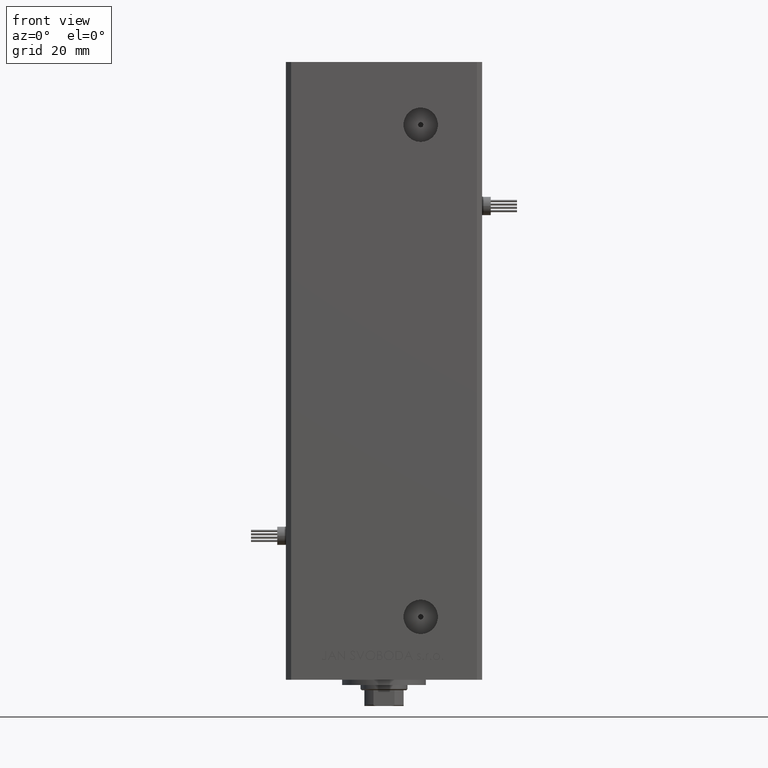
[diagram: clean part render]
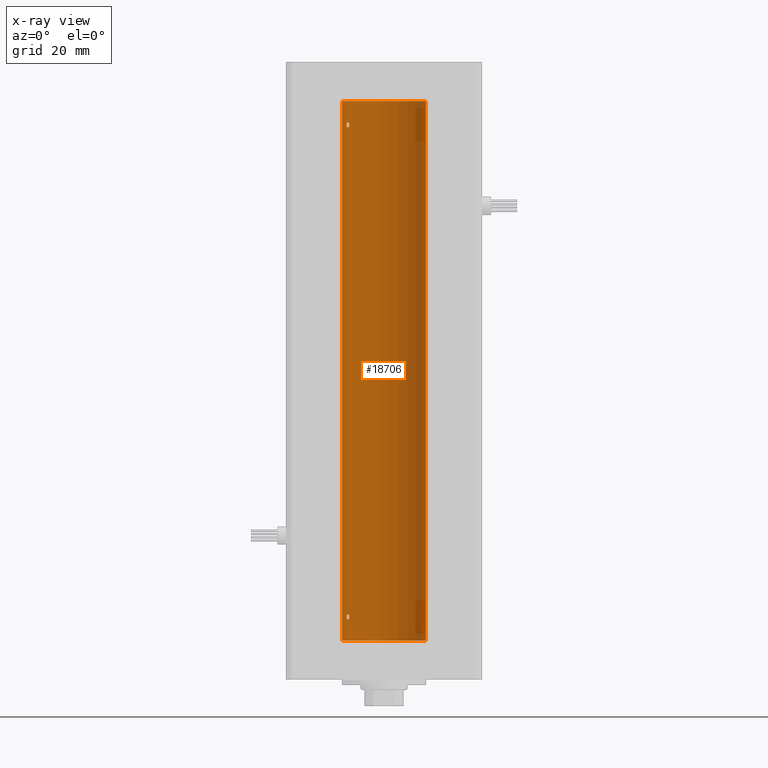
[diagram: x-ray — body ghosted, one internal face saturated and labeled with its STEP entity id]
A machine part, front view, then the same camera in x-ray: the body is ghosted and one INTERNAL B-rep face — a face not visible from any outside direction — is saturated and labeled: STEP entity #18706.
In plain terms, the highlighted cylindrical surface (partial cylindrical patch) has radius 16 mm, axis along (-0, -0, -1).
Its self-contained STEP definition (entity closure, byte-faithful):
#503 = CARTESIAN_POINT ( 'NONE',  ( -13.24976519864029179, 8.969293778684573226, 197.2815352263351372 ) ) ;
#889 = CARTESIAN_POINT ( 'NONE',  ( -13.22875655532296335, 8.999999999999978684, 9.140644760917750133 ) ) ;
#1066 = CARTESIAN_POINT ( 'NONE',  ( -16.00000000000000000, 0.000000000000000000, 206.0000000000000000 ) ) ;
#1126 = CARTESIAN_POINT ( 'NONE',  ( -13.23400746336172418, 8.992294519018086518, 196.8578145590230122 ) ) ;
#1419 = CARTESIAN_POINT ( 'NONE',  ( -14.11618354197462644, 7.533333301880464461, 9.893207651933423108 ) ) ;
#1684 = AXIS2_PLACEMENT_3D ( 'NONE', #25188, #16391, #49684 ) ;
#2106 = CARTESIAN_POINT ( 'NONE',  ( -13.37674940693423054, 8.779234808442856419, 8.360244157126787812 ) ) ;
#2907 = CARTESIAN_POINT ( 'NONE',  ( -13.22875655532296335, 8.999999999999982236, 9.000000000000007105 ) ) ;
#3736 = ORIENTED_EDGE ( 'NONE', *, *, #31727, .F. ) ;
#4255 = CARTESIAN_POINT ( 'NONE',  ( -14.38749456993815912, 6.999999999999998224, 196.9999999999999716 ) ) ;
#5139 = AXIS2_PLACEMENT_3D ( 'NONE', #35314, #51555, #27854 ) ;
#6712 = EDGE_CURVE ( 'NONE', #44365, #34410, #30851, .T. ) ;
#7169 = CARTESIAN_POINT ( 'NONE',  ( -14.27547848986623258, 7.226527013162171720, 8.352555730181538962 ) ) ;
#7376 = DIRECTION ( 'NONE',  ( -1.000000000000000000, 0.000000000000000000, 0.000000000000000000 ) ) ;
#7983 = CARTESIAN_POINT ( 'NONE',  ( -13.55800260393082901, 8.498809056167511145, 197.9036434462101965 ) ) ;
#8087 = CARTESIAN_POINT ( 'NONE',  ( -13.32426099938365383, 8.858246960865843178, 196.4688748775330112 ) ) ;
#8574 = CIRCLE ( 'NONE', #5139, 16.00000000000000000 ) ;
#8749 = CARTESIAN_POINT ( 'NONE',  ( -14.31650799088418324, 7.144337649771909327, 197.5355226273736378 ) ) ;
#9687 = CARTESIAN_POINT ( 'NONE',  ( -14.37227256866306746, 7.031482256185695334, 9.284457240976488279 ) ) ;
#10759 = CARTESIAN_POINT ( 'NONE',  ( -14.17528142432533755, 7.421143801852456257, 196.1739430735386520 ) ) ;
#10779 = VERTEX_POINT ( 'NONE', #44728 ) ;
#11104 = CARTESIAN_POINT ( 'NONE',  ( 0.000000000000000000, 0.000000000000000000, 206.0000000000000000 ) ) ;
#14635 = CARTESIAN_POINT ( 'NONE',  ( -13.32426099938365915, 8.858246960865836073, 8.468874877532975631 ) ) ;
#14876 = ORIENTED_EDGE ( 'NONE', *, *, #41777, .F. ) ;
#15217 = EDGE_CURVE ( 'NONE', #49601, #16703, #35661, .T. ) ;
#15846 = ORIENTED_EDGE ( 'NONE', *, *, #34668, .F. ) ;
#15896 = FACE_BOUND ( 'NONE', #31582, .T. ) ;
#16076 = CARTESIAN_POINT ( 'NONE',  ( -14.31660136508398828, 7.144151923086062617, 196.4646217954444012 ) ) ;
#16391 = DIRECTION ( 'NONE',  ( -0.000000000000000000, 0.000000000000000000, 1.000000000000000000 ) ) ;
#16597 = CARTESIAN_POINT ( 'NONE',  ( -13.77582987033441064, 8.139210687602716376, 196.0021105458418447 ) ) ;
#16703 = VERTEX_POINT ( 'NONE', #4255 ) ;
#16743 = CARTESIAN_POINT ( 'NONE',  ( -13.70792461986390798, 8.256614593260307444, 197.9966215356422765 ) ) ;
#17406 = CARTESIAN_POINT ( 'NONE',  ( -13.32457971225033866, 8.857769707964637362, 9.531999662746560631 ) ) ;
#17671 = CARTESIAN_POINT ( 'NONE',  ( -14.38749456993816978, 6.999999999999985789, 9.142625441524216967 ) ) ;
#17903 = EDGE_CURVE ( 'NONE', #23006, #10779, #43204, .T. ) ;
#18365 = CARTESIAN_POINT ( 'NONE',  ( -13.26838749541401263, 8.941532915076029653, 8.656217793921380022 ) ) ;
#18695 = CIRCLE ( 'NONE', #1684, 16.00000000000000000 ) ;
#18706 = ADVANCED_FACE ( 'NONE', ( #47614, #51883, #15896 ), #48409, .F. ) ;
#19663 = VERTEX_POINT ( 'NONE', #39102 ) ;
#20073 = CARTESIAN_POINT ( 'NONE',  ( -14.38749456993815912, 6.999999999999998224, 196.9999999999999716 ) ) ;
#20344 = CARTESIAN_POINT ( 'NONE',  ( -13.98699950016872506, 7.770591669637118670, 196.0184768166484730 ) ) ;
#20965 = AXIS2_PLACEMENT_3D ( 'NONE', #11104, #52422, #7376 ) ;
#21129 = CARTESIAN_POINT ( 'NONE',  ( -13.26838749541400730, 8.941532915076043864, 196.6562177939213427 ) ) ;
#21694 = CARTESIAN_POINT ( 'NONE',  ( -13.24976519864029889, 8.969293778684560792, 9.281535226335167366 ) ) ;
#21957 = CARTESIAN_POINT ( 'NONE',  ( -13.91892506969883669, 7.891973478508838902, 10.00155212263245375 ) ) ;
#22387 = CARTESIAN_POINT ( 'NONE',  ( -14.31660136508400072, 7.144151923086045741, 8.464621795444484675 ) ) ;
#22909 = CARTESIAN_POINT ( 'NONE',  ( -14.11621438951178575, 7.533308783216997817, 8.106571071839523412 ) ) ;
#23006 = VERTEX_POINT ( 'NONE', #1066 ) ;
#23183 = CARTESIAN_POINT ( 'NONE',  ( -13.70481462797718386, 8.258098555717490186, 8.025997477291141990 ) ) ;
#23199 = LINE ( 'NONE', #31986, #35754 ) ;
#23452 = CARTESIAN_POINT ( 'NONE',  ( -14.17528142432534288, 7.421143801852442934, 8.173943073538671555 ) ) ;
#23888 = ORIENTED_EDGE ( 'NONE', *, *, #15217, .F. ) ;
#24520 = CARTESIAN_POINT ( 'NONE',  ( -13.98878315975728981, 7.767347947480344850, 197.9805461432612503 ) ) ;
#25139 = CARTESIAN_POINT ( 'NONE',  ( -13.56386909142669772, 8.487613976483638467, 196.1182242979961075 ) ) ;
#25168 = CARTESIAN_POINT ( 'NONE',  ( -13.22875655532296335, 8.999999999999982236, 9.000000000000007105 ) ) ;
#25188 = CARTESIAN_POINT ( 'NONE',  ( 0.000000000000000000, 0.000000000000000000, 206.0000000000000000 ) ) ;
#26377 = CARTESIAN_POINT ( 'NONE',  ( -13.91838063522421542, 7.892966471903923420, 7.998148313308686141 ) ) ;
#26644 = CARTESIAN_POINT ( 'NONE',  ( -13.49759407097375608, 8.592283911330213186, 8.184099152127679133 ) ) ;
#26911 = CARTESIAN_POINT ( 'NONE',  ( -13.22875655532296513, 8.999999999999982236, 8.929565622361650412 ) ) ;
#27038 = CARTESIAN_POINT ( 'NONE',  ( -14.11621438951178398, 7.533308783217012028, 196.1065710718395110 ) ) ;
#27854 = DIRECTION ( 'NONE',  ( 1.000000000000000000, 0.000000000000000000, 0.000000000000000000 ) ) ;
#27943 = CARTESIAN_POINT ( 'NONE',  ( 16.00000000000000000, 1.959434878635765131E-15, 0.000000000000000000 ) ) ;
#28263 = CARTESIAN_POINT ( 'NONE',  ( -13.22875655532296157, 8.999999999999998224, 197.1406447609177235 ) ) ;
#28850 = B_SPLINE_CURVE_WITH_KNOTS ( 'NONE', 3,
 ( #20073, #36354, #52608, #16076, #47268, #10759, #27038, #20344, #44849, #16597, #49115, #25139, #32359, #45368, #8087, #21129, #32622, #1126, #37377, #48596 ),
 .UNSPECIFIED., .F., .F.,
 ( 4, 2, 2, 2, 2, 2, 2, 2, 2, 4 ),
 ( 0.000000000000000000, 0.0004222090241339814844, 0.0008444180482679629687, 0.001266627072401944453, 0.001688836096535925937, 0.002111045120669907422, 0.002533254144803888906, 0.002955463168937870391, 0.003166567681004825354, 0.003377672193071779884 ),
 .UNSPECIFIED. ) ;
#29026 = CARTESIAN_POINT ( 'NONE',  ( -14.11618354197461400, 7.533333301880476895, 197.8932076519334373 ) ) ;
#29165 = CARTESIAN_POINT ( 'NONE',  ( -13.98878315975730224, 7.767347947480332415, 9.980546143261287639 ) ) ;
#30622 = EDGE_CURVE ( 'NONE', #19663, #23006, #18695, .T. ) ;
#30635 = CARTESIAN_POINT ( 'NONE',  ( -14.37250282441144655, 7.031013007322923336, 8.716856996037272154 ) ) ;
#30851 = B_SPLINE_CURVE_WITH_KNOTS ( 'NONE', 3,
 ( #31701, #38620, #30635, #22387, #7169, #23452, #22909, #47946, #26377, #42611, #23183, #50873, #26644, #2106, #14635, #18365, #47671, #39422, #26911, #2907 ),
 .UNSPECIFIED., .F., .F.,
 ( 4, 2, 2, 2, 2, 2, 2, 2, 2, 4 ),
 ( 0.000000000000000000, 0.0004222090241339719434, 0.0008444180482679438868, 0.001266627072401915830, 0.001688836096535887774, 0.002111045120669859717, 0.002533254144803831660, 0.002955463168937803604, 0.003166567681004789359, 0.003377672193071775547 ),
 .UNSPECIFIED. ) ;
#31009 = ORIENTED_EDGE ( 'NONE', *, *, #17903, .T. ) ;
#31582 = EDGE_LOOP ( 'NONE', ( #3736, #23888 ) ) ;
#31701 = CARTESIAN_POINT ( 'NONE',  ( -14.38749456993816800, 6.999999999999984013, 9.000000000000007105 ) ) ;
#31727 = EDGE_CURVE ( 'NONE', #16703, #49601, #28850, .T. ) ;
#31986 = CARTESIAN_POINT ( 'NONE',  ( 16.00000000000000000, 1.959434878635765131E-15, 206.0000000000000000 ) ) ;
#31987 = CARTESIAN_POINT ( 'NONE',  ( -13.32457971225032267, 8.857769707964649797, 197.5319996627465571 ) ) ;
#32359 = CARTESIAN_POINT ( 'NONE',  ( -13.49759407097375075, 8.592283911330225621, 196.1840991521276578 ) ) ;
#32622 = CARTESIAN_POINT ( 'NONE',  ( -13.25390108270225298, 8.962947079338393408, 196.7214357623584817 ) ) ;
#32661 = EDGE_LOOP ( 'NONE', ( #15846, #51189, #31009, #36077 ) ) ;
#34218 = CARTESIAN_POINT ( 'NONE',  ( -14.38749456993816800, 6.999999999999984013, 9.000000000000007105 ) ) ;
#34410 = VERTEX_POINT ( 'NONE', #35312 ) ;
#34668 = EDGE_CURVE ( 'NONE', #19663, #38535, #23199, .T. ) ;
#35312 = CARTESIAN_POINT ( 'NONE',  ( -13.22875655532296335, 8.999999999999982236, 9.000000000000007105 ) ) ;
#35314 = CARTESIAN_POINT ( 'NONE',  ( 0.000000000000000000, 0.000000000000000000, 0.000000000000000000 ) ) ;
#35661 = B_SPLINE_CURVE_WITH_KNOTS ( 'NONE', 3,
 ( #48484, #28263, #503, #31987, #44742, #7983, #16743, #49256, #24520, #29026, #45258, #40756, #8749, #41269, #40502, #36503 ),
 .UNSPECIFIED., .F., .F.,
 ( 4, 2, 2, 2, 2, 2, 2, 4 ),
 ( 0.003377672193071779884, 0.003799209865779893530, 0.004220747538488007176, 0.005063822883904185029, 0.005485360556612275257, 0.005906898229320365484, 0.006328435902028455712, 0.006749973574736545072 ),
 .UNSPECIFIED. ) ;
#35754 = VECTOR ( 'NONE', #39439, 1000.000000000000000 ) ;
#36077 = ORIENTED_EDGE ( 'NONE', *, *, #50138, .F. ) ;
#36354 = CARTESIAN_POINT ( 'NONE',  ( -14.38749456993815556, 6.999999999999997335, 196.8571474096353313 ) ) ;
#36503 = CARTESIAN_POINT ( 'NONE',  ( -14.38749456993815912, 6.999999999999998224, 196.9999999999999716 ) ) ;
#37377 = CARTESIAN_POINT ( 'NONE',  ( -13.22875655532295802, 8.999999999999998224, 196.9295656223616220 ) ) ;
#37931 = CARTESIAN_POINT ( 'NONE',  ( -13.70792461986391864, 8.256614593260295010, 9.996621535642280065 ) ) ;
#38191 = CARTESIAN_POINT ( 'NONE',  ( -14.27521483392929902, 7.227035590538620546, 9.647859870688199280 ) ) ;
#38535 = VERTEX_POINT ( 'NONE', #27943 ) ;
#38620 = CARTESIAN_POINT ( 'NONE',  ( -14.38749456993816445, 6.999999999999982236, 8.857147409635420132 ) ) ;
#38798 = VECTOR ( 'NONE', #38953, 1000.000000000000000 ) ;
#38953 = DIRECTION ( 'NONE',  ( -0.000000000000000000, -0.000000000000000000, -1.000000000000000000 ) ) ;
#39102 = CARTESIAN_POINT ( 'NONE',  ( 16.00000000000000000, 1.959434878635765131E-15, 206.0000000000000000 ) ) ;
#39422 = CARTESIAN_POINT ( 'NONE',  ( -13.23400746336173484, 8.992294519018072307, 8.857814559023026391 ) ) ;
#39439 = DIRECTION ( 'NONE',  ( -0.000000000000000000, -0.000000000000000000, -1.000000000000000000 ) ) ;
#40502 = CARTESIAN_POINT ( 'NONE',  ( -14.38749456993816089, 6.999999999999999112, 197.1426254415242454 ) ) ;
#40756 = CARTESIAN_POINT ( 'NONE',  ( -14.27521483392929369, 7.227035590538639198, 197.6478598706882508 ) ) ;
#41269 = CARTESIAN_POINT ( 'NONE',  ( -14.37227256866306213, 7.031482256185710433, 197.2844572409764510 ) ) ;
#41406 = CARTESIAN_POINT ( 'NONE',  ( -13.37741691572086467, 8.778212469422998154, 9.640882860227108608 ) ) ;
#41659 = CARTESIAN_POINT ( 'NONE',  ( -13.55800260393082901, 8.498809056167502263, 9.903643446210180556 ) ) ;
#41777 = EDGE_CURVE ( 'NONE', #34410, #44365, #47242, .T. ) ;
#41926 = CARTESIAN_POINT ( 'NONE',  ( -14.17576283486775779, 7.420212263225971050, 9.825253034304363808 ) ) ;
#42611 = CARTESIAN_POINT ( 'NONE',  ( -13.77582987033441952, 8.139210687602698613, 8.002110545841825129 ) ) ;
#43204 = LINE ( 'NONE', #50943, #38798 ) ;
#44279 = CARTESIAN_POINT ( 'NONE',  ( -13.22875655532295802, 8.999999999999996447, 196.9999999999999716 ) ) ;
#44365 = VERTEX_POINT ( 'NONE', #51196 ) ;
#44728 = CARTESIAN_POINT ( 'NONE',  ( -16.00000000000000000, 0.000000000000000000, 0.000000000000000000 ) ) ;
#44742 = CARTESIAN_POINT ( 'NONE',  ( -13.37741691572086289, 8.778212469423007036, 197.6408828602271228 ) ) ;
#44849 = CARTESIAN_POINT ( 'NONE',  ( -13.91838063522421187, 7.892966471903947401, 195.9981483133086897 ) ) ;
#45258 = CARTESIAN_POINT ( 'NONE',  ( -14.17576283486774713, 7.420212263225987925, 197.8252530343043532 ) ) ;
#45368 = CARTESIAN_POINT ( 'NONE',  ( -13.37674940693422698, 8.779234808442867077, 196.3602441571267718 ) ) ;
#45400 = CARTESIAN_POINT ( 'NONE',  ( -14.31650799088419213, 7.144337649771898668, 9.535522627373698157 ) ) ;
#46711 = ORIENTED_EDGE ( 'NONE', *, *, #6712, .F. ) ;
#47242 = B_SPLINE_CURVE_WITH_KNOTS ( 'NONE', 3,
 ( #25168, #889, #21694, #17406, #41406, #41659, #37931, #21957, #29165, #1419, #41926, #38191, #45400, #9687, #17671, #34218 ),
 .UNSPECIFIED., .F., .F.,
 ( 4, 2, 2, 2, 2, 2, 2, 4 ),
 ( 0.003377672193071775547, 0.003799209865779873581, 0.004220747538487971615, 0.005063822883904167682, 0.005485360556612266583, 0.005906898229320366352, 0.006328435902028466120, 0.006749973574736565021 ),
 .UNSPECIFIED. ) ;
#47268 = CARTESIAN_POINT ( 'NONE',  ( -14.27547848986623080, 7.226527013162187707, 196.3525557301815638 ) ) ;
#47614 = FACE_OUTER_BOUND ( 'NONE', #32661, .T. ) ;
#47671 = CARTESIAN_POINT ( 'NONE',  ( -13.25390108270226364, 8.962947079338375644, 8.721435762358465738 ) ) ;
#47946 = CARTESIAN_POINT ( 'NONE',  ( -13.98699950016873039, 7.770591669637105348, 8.018476816648488992 ) ) ;
#48363 = EDGE_LOOP ( 'NONE', ( #46711, #14876 ) ) ;
#48409 = CYLINDRICAL_SURFACE ( 'NONE', #20965, 16.00000000000000000 ) ;
#48484 = CARTESIAN_POINT ( 'NONE',  ( -13.22875655532295802, 8.999999999999996447, 196.9999999999999716 ) ) ;
#48596 = CARTESIAN_POINT ( 'NONE',  ( -13.22875655532295802, 8.999999999999996447, 196.9999999999999716 ) ) ;
#49115 = CARTESIAN_POINT ( 'NONE',  ( -13.70481462797717320, 8.258098555717507949, 196.0259974772910994 ) ) ;
#49256 = CARTESIAN_POINT ( 'NONE',  ( -13.91892506969882426, 7.891973478508846895, 198.0015521226324324 ) ) ;
#49601 = VERTEX_POINT ( 'NONE', #44279 ) ;
#49684 = DIRECTION ( 'NONE',  ( 1.000000000000000000, 0.000000000000000000, 0.000000000000000000 ) ) ;
#50138 = EDGE_CURVE ( 'NONE', #38535, #10779, #8574, .T. ) ;
#50873 = CARTESIAN_POINT ( 'NONE',  ( -13.56386909142670660, 8.487613976483618927, 8.118224297996086136 ) ) ;
#50943 = CARTESIAN_POINT ( 'NONE',  ( -16.00000000000000000, 0.000000000000000000, 206.0000000000000000 ) ) ;
#51189 = ORIENTED_EDGE ( 'NONE', *, *, #30622, .T. ) ;
#51196 = CARTESIAN_POINT ( 'NONE',  ( -14.38749456993816800, 6.999999999999984013, 9.000000000000007105 ) ) ;
#51555 = DIRECTION ( 'NONE',  ( -0.000000000000000000, 0.000000000000000000, 1.000000000000000000 ) ) ;
#51883 = FACE_BOUND ( 'NONE', #48363, .T. ) ;
#52422 = DIRECTION ( 'NONE',  ( -0.000000000000000000, -0.000000000000000000, -1.000000000000000000 ) ) ;
#52608 = CARTESIAN_POINT ( 'NONE',  ( -14.37250282441143945, 7.031013007322937547, 196.7168569960372793 ) ) ;